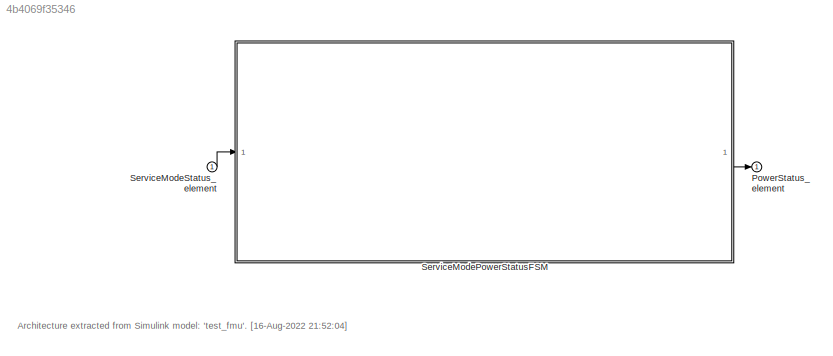
MODEL slx_4b4069f35346
KIND model
CONFIG AbsTol = auto
CONFIG EnableMultiTasking = off
CONFIG FixedStep = auto
CONFIG MaxStep = auto
CONFIG MinStep = auto
CONFIG RelTol = 1e-3
CONFIG SampleTimeConstraint = Unconstrained
CONFIG SolverName = FixedStepAuto
CONFIG StartTime = 0.0
CONFIG StopTime = 10.0
BLOCK [Outport] PowerStatus_element
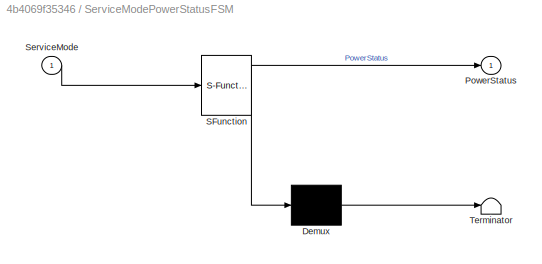
BLOCK [SubSystem] ServiceModePowerStatusFSM
  ErrorFcn = Stateflow.Translate.translate
  PermitHierarchicalResolution = ExplicitOnly
  PortSchema = {"entries":[{"content":{"headerSize":26,"margin":15,"minimumSpacing":25,"sides":[{"content":{"connectorIds":["In1"]},"type":"ConnectorPlacement.EquallySpacedRectSide","uuid":"ee8f242f-9245-4014-bba5-adee5f5da91a"},{"content":{"connectorIds":["Out1"],"side":"RIGHT"},"type":"ConnectorPlacement.EquallySpacedRectSide","uuid":"e7114069-b988-4f0c-ba11-6473b42aed19"},{"content":{"connectorIds":[],"side":...<+288ch>
  Ports = [1, 1]
  RequestExecContextInheritance = off
  SFBlockType = Chart
  TreatAsAtomicUnit = on
BLOCK [Demux] ServiceModePowerStatusFSM/ Demux 
  Outputs = 1
  Ports = [1, 1]
BLOCK [S-Function] ServiceModePowerStatusFSM/ SFunction 
  EnableBusSupport = off
  FunctionName = sf_sfun
  PortCounts = [1 2]
  Ports = [1, 2]
  SFcnIsStateOwnerBlock = off
  SFunctionDeploymentMode = off
  Tag = Stateflow S-Function 1
BLOCK [Terminator] ServiceModePowerStatusFSM/ Terminator 
BLOCK [Outport] ServiceModePowerStatusFSM/PowerStatus
BLOCK [Inport] ServiceModePowerStatusFSM/ServiceMode
BLOCK [Inport] ServiceModeStatus_element
ANNOTATION (root): Architecture extracted from Simulink model: 'test_fmu'. [16-Aug-2022 21:52:04]
LINE ServiceModePowerStatusFSM:1 -> PowerStatus_element:1
LINE ServiceModeStatus_element:1 -> ServiceModePowerStatusFSM:1
CHART ServiceModePowerStatusFSM states=0 transitions=6
CHART  states=0 transitions=0
